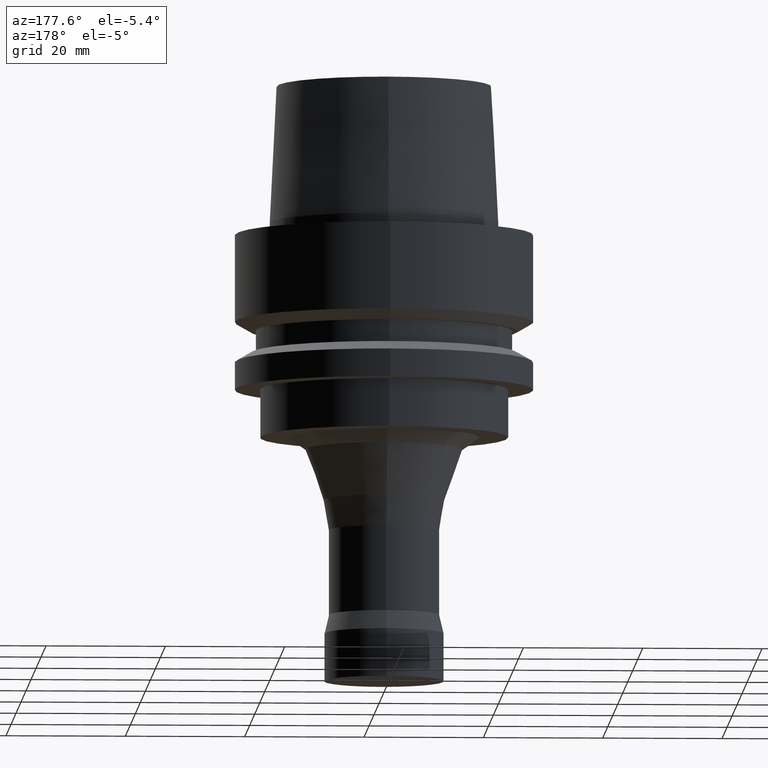
[diagram: clean part render]
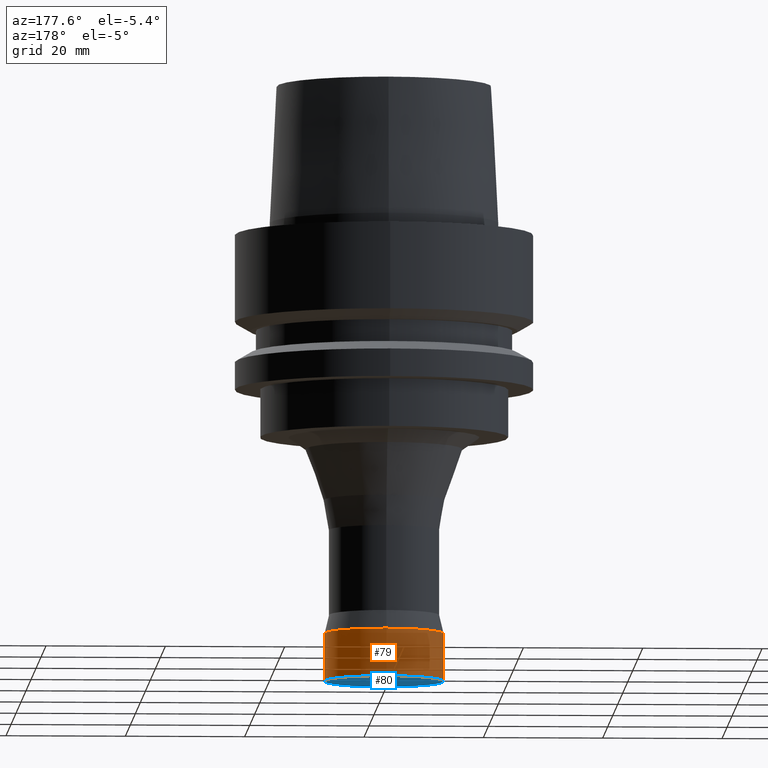
[diagram: same view with the hole feature highlighted: cylindrical wall and planar end face, labeled with their STEP entity ids]
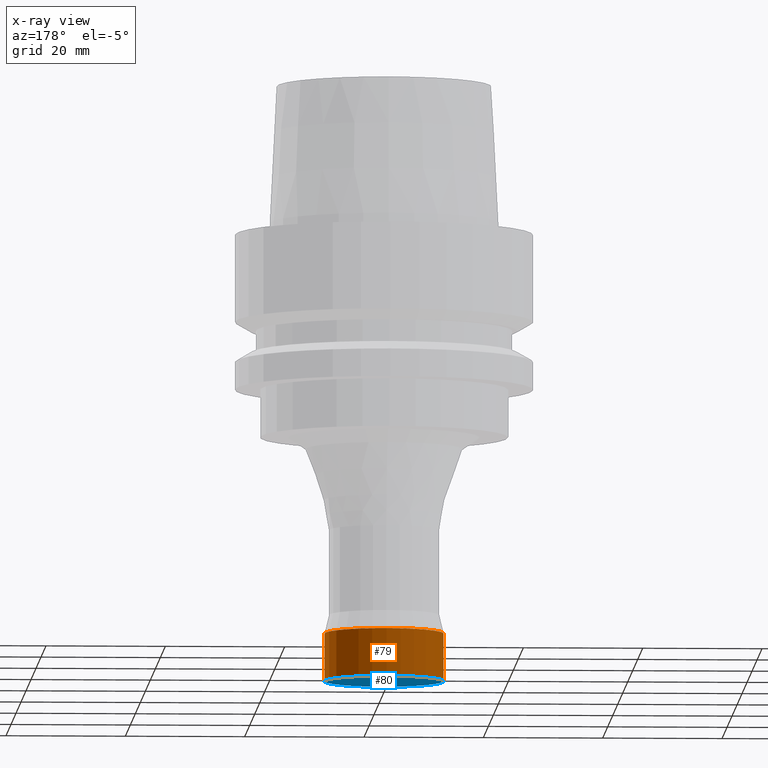
[diagram: x-ray of the same camera — body ghosted, the hole faces saturated]
A machine part, auxiliary view. The highlighted faces form one hole feature of diameter 20 mm: the cylindrical wall (entity #79, orange) and its adjacent planar end face (entity #80, blue) — they share a circular edge in the B-rep.
The next image is the same camera in x-ray (body ghosted, the hole faces saturated) — the bore reads through the body.
Wall:
#79=ADVANCED_FACE('',(#109,#110),#111,.T.);
#109=FACE_BOUND('',#170,.T.);
#110=FACE_BOUND('',#171,.T.);
#111=CYLINDRICAL_SURFACE('',#172,10.0);
#170=EDGE_LOOP('',(#239));
#171=EDGE_LOOP('',(#240));
#172=AXIS2_PLACEMENT_3D('',#241,#242,#243);
#239=ORIENTED_EDGE('',*,*,#327,.F.);
#240=ORIENTED_EDGE('',*,*,#326,.T.);
#241=CARTESIAN_POINT('',(4.3474961369731E-015,8.69499227394621E-015,-71.0));
#242=DIRECTION('',(-6.12323399573677E-017,-1.22464679914735E-016,1.0));
#243=DIRECTION('',(-1.23259516440783E-032,1.0,1.22464679914735E-016));
#326=EDGE_CURVE('',#350,#350,#351,.T.);
#327=EDGE_CURVE('',#352,#352,#353,.T.);
#350=VERTEX_POINT('',#390);
#351=CIRCLE('',#391,10.0);
#352=VERTEX_POINT('',#392);
#353=CIRCLE('',#393,10.0);
#390=CARTESIAN_POINT('',(4.10256677714363E-015,10.0,-67.0));
#391=AXIS2_PLACEMENT_3D('',#434,#435,#436);
#392=CARTESIAN_POINT('',(4.59242549680257E-015,10.0,-75.0));
#393=AXIS2_PLACEMENT_3D('',#437,#438,#439);
#434=CARTESIAN_POINT('',(4.10256677714363E-015,8.20513355428726E-015,-67.0));
#435=DIRECTION('',(6.12323399573677E-017,1.22464679914735E-016,-1.0));
#436=DIRECTION('',(-1.23259516440783E-032,1.0,1.22464679914735E-016));
#437=CARTESIAN_POINT('',(4.59242549680257E-015,9.18485099360515E-015,-75.0));
#438=DIRECTION('',(6.12323399573677E-017,1.22464679914735E-016,-1.0));
#439=DIRECTION('',(-1.23259516440783E-032,1.0,1.22464679914735E-016));
End face:
#80=ADVANCED_FACE('',(#112),#113,.T.);
#112=FACE_OUTER_BOUND('',#173,.T.);
#113=PLANE('',#174);
#173=EDGE_LOOP('',(#244));
#174=AXIS2_PLACEMENT_3D('',#245,#246,#247);
#244=ORIENTED_EDGE('',*,*,#327,.T.);
#245=CARTESIAN_POINT('',(4.59242549680257E-015,5.00000000000001,-75.0));
#246=DIRECTION('',(6.12323399573677E-017,1.22464679914735E-016,-1.0));
#247=DIRECTION('',(-1.23259516440783E-032,1.0,1.22464679914735E-016));
#327=EDGE_CURVE('',#352,#352,#353,.T.);
#352=VERTEX_POINT('',#392);
#353=CIRCLE('',#393,10.0);
#392=CARTESIAN_POINT('',(4.59242549680257E-015,10.0,-75.0));
#393=AXIS2_PLACEMENT_3D('',#437,#438,#439);
#437=CARTESIAN_POINT('',(4.59242549680257E-015,9.18485099360515E-015,-75.0));
#438=DIRECTION('',(6.12323399573677E-017,1.22464679914735E-016,-1.0));
#439=DIRECTION('',(-1.23259516440783E-032,1.0,1.22464679914735E-016));